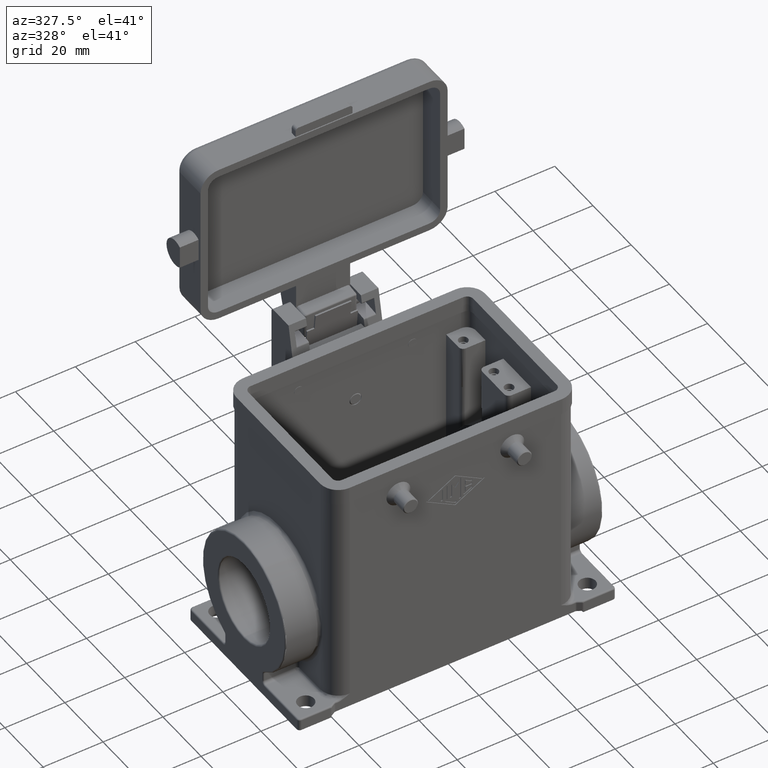
[diagram: clean part render]
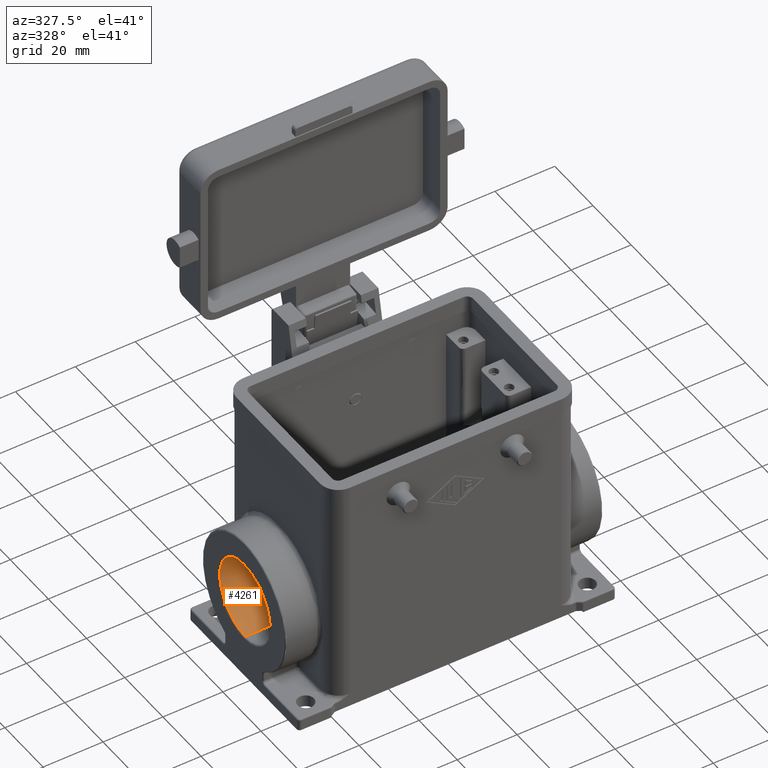
[diagram: same view with one face highlighted and labeled with its STEP entity id]
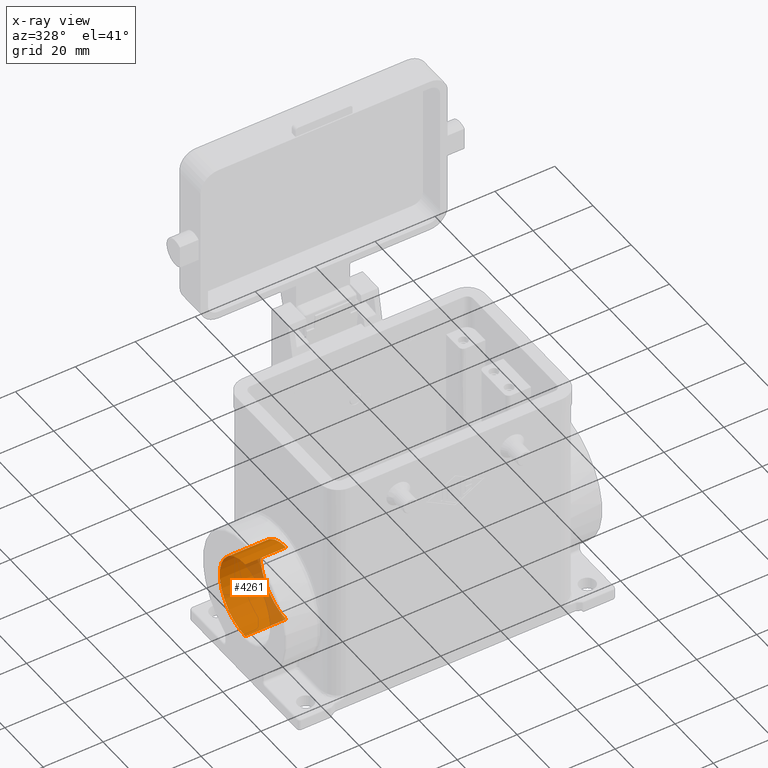
[diagram: x-ray of the same camera — body ghosted, the highlighted face saturated]
A machine part, auxiliary view. The second image highlights one B-rep face of the part: STEP entity #4261.
The next image is the same camera in x-ray: the body ghosted, the highlighted face saturated — about 18% of this face is hidden behind the body in this view.
In plain terms, the highlighted face is a freeform B-spline surface patch.
Its self-contained STEP definition (entity closure, byte-faithful):
#442=CARTESIAN_POINT('',(-38.866025403784448,0.0,-11.610000000000007));
#443=VERTEX_POINT('',#442);
#451=CARTESIAN_POINT('',(-38.866025403784448,-1.639748E-015,-38.390000000000008));
#452=VERTEX_POINT('',#451);
#453=CARTESIAN_POINT('',(-38.866025403784448,0.0,-25.000000000000007));
#454=DIRECTION('',(1.0,0.0,0.0));
#455=DIRECTION('',(0.0,0.0,1.0));
#456=AXIS2_PLACEMENT_3D('',#453,#454,#455);
#457=CIRCLE('',#456,13.390000000000002);
#458=EDGE_CURVE('',#452,#443,#457,.T.);
#4209=CARTESIAN_POINT('',(-38.866025403784448,1.639748E-015,-38.390000000000008));
#4210=CARTESIAN_POINT('',(-52.500000000000000,1.639748E-015,-38.390000000000008));
#4211=CARTESIAN_POINT('',(-38.866025403784448,13.389999999999999,-38.390000000000001));
#4212=CARTESIAN_POINT('',(-52.500000000000000,13.389999999999999,-38.390000000000001));
#4213=CARTESIAN_POINT('',(-38.866025403784448,13.390000000000001,-25.000000000000007));
#4214=CARTESIAN_POINT('',(-52.500000000000000,13.390000000000001,-25.000000000000007));
#4215=CARTESIAN_POINT('',(-38.866025403784448,13.389999999999993,-11.610000000000010));
#4216=CARTESIAN_POINT('',(-52.500000000000000,13.389999999999993,-11.610000000000010));
#4217=CARTESIAN_POINT('',(-38.866025403784448,-1.639748E-015,-11.610000000000007));
#4218=CARTESIAN_POINT('',(-52.500000000000000,-1.639748E-015,-11.610000000000007));
#4219=CARTESIAN_POINT('',(-38.866025403784448,-13.389999999999999,-11.610000000000010));
#4220=CARTESIAN_POINT('',(-52.500000000000000,-13.389999999999999,-11.610000000000010));
#4221=CARTESIAN_POINT('',(-38.866025403784448,-13.390000000000001,-25.000000000000007));
#4222=CARTESIAN_POINT('',(-52.500000000000000,-13.390000000000001,-25.000000000000007));
#4223=CARTESIAN_POINT('',(-38.866025403784448,-13.389999999999993,-38.390000000000001));
#4224=CARTESIAN_POINT('',(-52.500000000000000,-13.389999999999993,-38.390000000000001));
#4225=CARTESIAN_POINT('',(-38.866025403784448,1.639748E-015,-38.390000000000008));
#4226=CARTESIAN_POINT('',(-52.500000000000000,1.639748E-015,-38.390000000000008));
#4234=(BOUNDED_SURFACE()B_SPLINE_SURFACE(1,2,((#4209,#4211,#4213,#4215,#4217,#4219,#4221,#4223,#4225),(#4210,#4212,#4214,#4216,#4218,#4220,#4222,#4224,#4226)),.UNSPECIFIED.,.F.,.T.,.U.)B_SPLINE_SURFACE_WITH_KNOTS((2,2),(3,2,2,2,3),(-0.527780978200730,0.490439678723508),(0.0,21.032962815783666,42.065925631567332,63.098888447350994,84.131851263134664),.UNSPECIFIED.)GEOMETRIC_REPRESENTATION_ITEM()RATIONAL_B_SPLINE_SURFACE(((1.0,0.707106781186548,1.0,0.707106781186548,1.0,0.707106781186548,1.0,0.707106781186548,1.0),(1.0,0.707106781186548,1.0,0.707106781186548,1.0,0.707106781186548,1.0,0.707106781186548,1.0)))REPRESENTATION_ITEM('')SURFACE());
#4235=CARTESIAN_POINT('',(-52.500000000000000,0.0,-11.610000000000010));
#4236=VERTEX_POINT('',#4235);
#4237=CARTESIAN_POINT('',(-52.500000000000000,0.0,-11.610000000000010));
#4238=DIRECTION('',(1.0,0.0,0.0));
#4239=VECTOR('',#4238,13.633974596215552);
#4240=LINE('',#4237,#4239);
#4241=EDGE_CURVE('',#4236,#443,#4240,.T.);
#4242=ORIENTED_EDGE('',*,*,#4241,.F.);
#4243=CARTESIAN_POINT('',(-52.500000000000000,-1.639748E-015,-38.390000000000008));
#4244=VERTEX_POINT('',#4243);
#4245=CARTESIAN_POINT('',(-52.500000000000000,0.0,-25.000000000000007));
#4246=DIRECTION('',(1.0,0.0,0.0));
#4247=DIRECTION('',(0.0,0.0,-1.0));
#4248=AXIS2_PLACEMENT_3D('',#4245,#4246,#4247);
#4249=CIRCLE('',#4248,13.390000000000001);
#4250=EDGE_CURVE('',#4244,#4236,#4249,.T.);
#4251=ORIENTED_EDGE('',*,*,#4250,.F.);
#4252=CARTESIAN_POINT('',(-38.866025403784448,-1.639748E-015,-38.390000000000008));
#4253=DIRECTION('',(-1.0,0.0,0.0));
#4254=VECTOR('',#4253,13.633974596215552);
#4255=LINE('',#4252,#4254);
#4256=EDGE_CURVE('',#452,#4244,#4255,.T.);
#4257=ORIENTED_EDGE('',*,*,#4256,.F.);
#4258=ORIENTED_EDGE('',*,*,#458,.T.);
#4259=EDGE_LOOP('',(#4242,#4251,#4257,#4258));
#4260=FACE_OUTER_BOUND('',#4259,.T.);
#4261=ADVANCED_FACE('',(#4260),#4234,.F.);